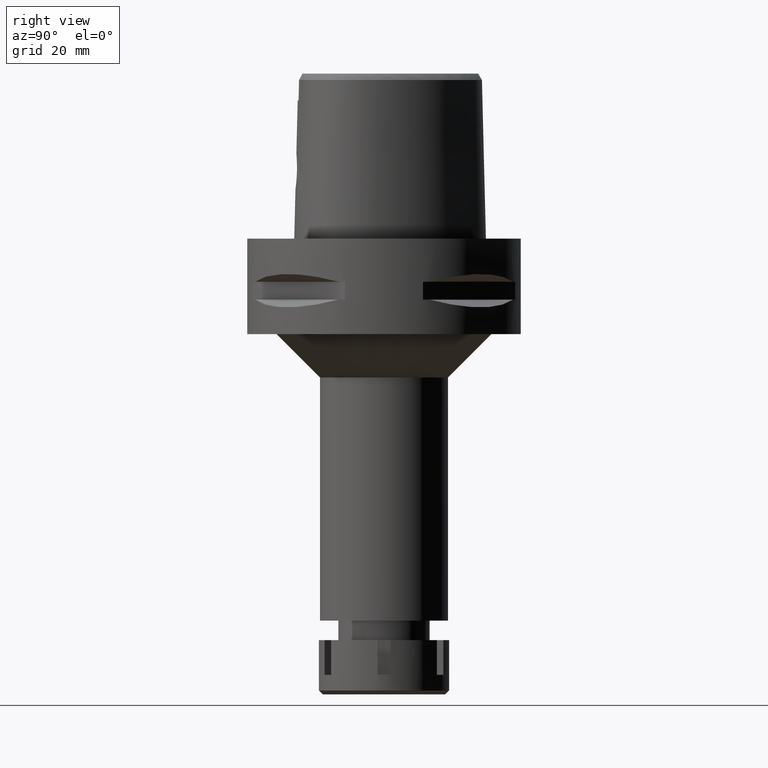
[diagram: clean part render]
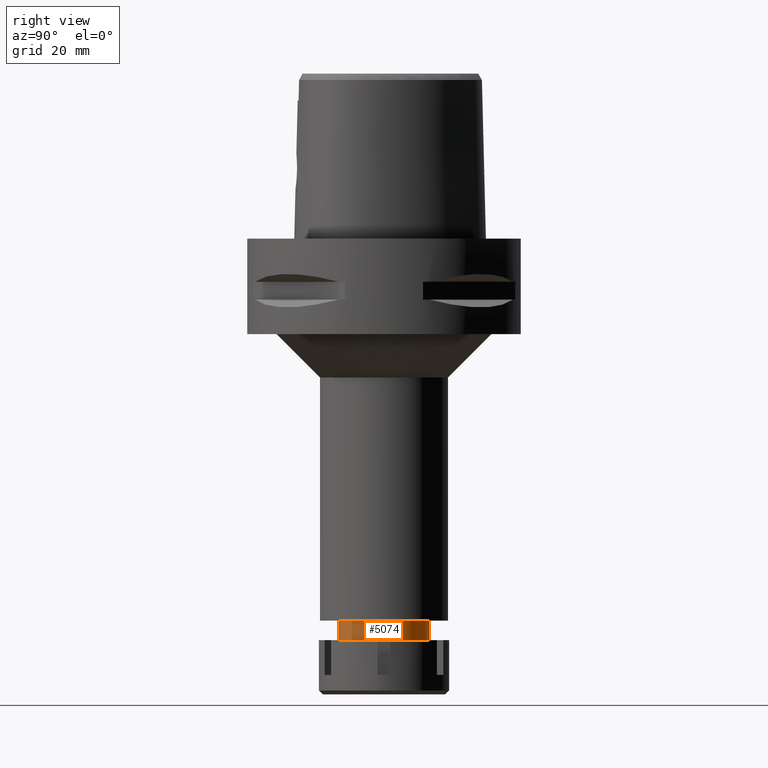
[diagram: same view with one face highlighted and labeled with its STEP entity id]
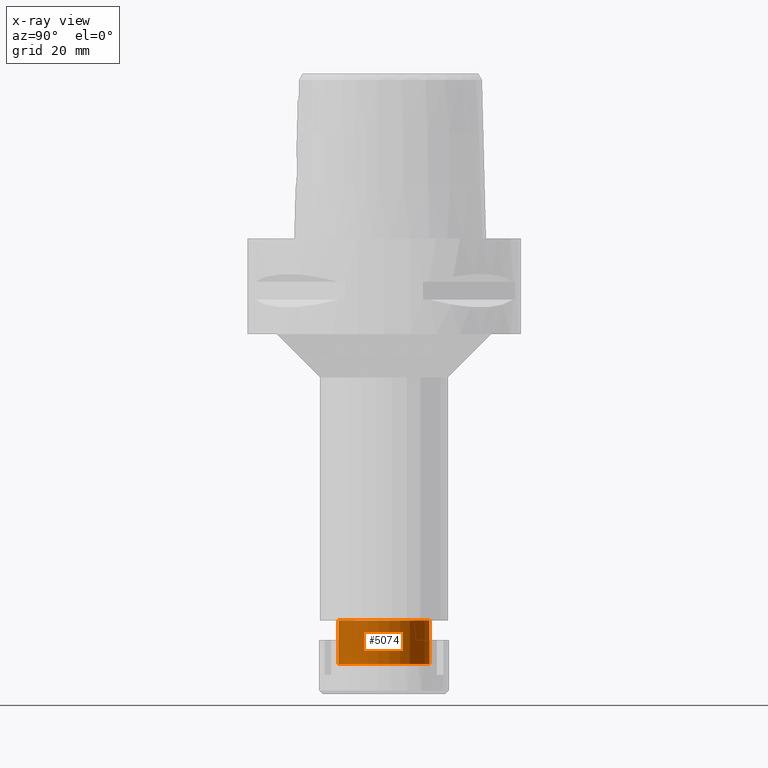
[diagram: x-ray of the same camera — body ghosted, the highlighted face saturated]
A machine part, right view. The second image highlights one B-rep face of the part: STEP entity #5074.
The next image is the same camera in x-ray: the body ghosted, the highlighted face saturated — about 0% of this face is hidden behind the body in this view.
In plain terms, the highlighted cylindrical surface (partial cylindrical patch) has radius 10.5 mm, axis along (0, 0, -1).
Its self-contained STEP definition (entity closure, byte-faithful):
#2 = CARTESIAN_POINT ( 'NONE',  ( 0.0000000000000000000, 10.50000000000000000, -98.00000000000000000 ) ) ;
#96 = EDGE_CURVE ( 'NONE', #3090, #4473, #5526, .T. ) ;
#106 = CARTESIAN_POINT ( 'NONE',  ( 0.0000000000000000000, -10.50000000000000000, -88.00000000000000000 ) ) ;
#171 = DIRECTION ( 'NONE',  ( 0.0000000000000000000, -1.000000000000000000, 0.0000000000000000000 ) ) ;
#389 = DIRECTION ( 'NONE',  ( 0.0000000000000000000, 0.0000000000000000000, -1.000000000000000000 ) ) ;
#812 = CARTESIAN_POINT ( 'NONE',  ( 0.0000000000000000000, 10.50000000000000000, -88.00000000000000000 ) ) ;
#822 = LINE ( 'NONE', #2516, #4542 ) ;
#862 = AXIS2_PLACEMENT_3D ( 'NONE', #4140, #1984, #3311 ) ;
#1141 = ORIENTED_EDGE ( 'NONE', *, *, #3815, .T. ) ;
#1300 = AXIS2_PLACEMENT_3D ( 'NONE', #3404, #2621, #5066 ) ;
#1418 = CARTESIAN_POINT ( 'NONE',  ( 0.0000000000000000000, 1.284654492305999992E-14, -98.00000000000000000 ) ) ;
#1448 = DIRECTION ( 'NONE',  ( 0.0000000000000000000, 0.0000000000000000000, -1.000000000000000000 ) ) ;
#1773 = VECTOR ( 'NONE', #1448, 1000.000000000000000 ) ;
#1984 = DIRECTION ( 'NONE',  ( 0.0000000000000000000, 0.0000000000000000000, -1.000000000000000000 ) ) ;
#2516 = CARTESIAN_POINT ( 'NONE',  ( 0.0000000000000000000, -10.50000000000000000, -88.00000000000000000 ) ) ;
#2621 = DIRECTION ( 'NONE',  ( 0.0000000000000000000, 0.0000000000000000000, -1.000000000000000000 ) ) ;
#2756 = ORIENTED_EDGE ( 'NONE', *, *, #4978, .T. ) ;
#3090 = VERTEX_POINT ( 'NONE', #812 ) ;
#3102 = CARTESIAN_POINT ( 'NONE',  ( 0.0000000000000000000, 10.50000000000000000, -88.00000000000000000 ) ) ;
#3123 = CARTESIAN_POINT ( 'NONE',  ( 0.0000000000000000000, -10.50000000000000000, -98.00000000000000000 ) ) ;
#3287 = CIRCLE ( 'NONE', #862, 10.50000000000000000 ) ;
#3311 = DIRECTION ( 'NONE',  ( 0.0000000000000000000, 1.000000000000000000, 0.0000000000000000000 ) ) ;
#3404 = CARTESIAN_POINT ( 'NONE',  ( 0.0000000000000000000, 1.284654492305999992E-14, 4.899999999999999467 ) ) ;
#3631 = EDGE_LOOP ( 'NONE', ( #1141, #2756, #5388, #4571 ) ) ;
#3646 = AXIS2_PLACEMENT_3D ( 'NONE', #1418, #3973, #171 ) ;
#3815 = EDGE_CURVE ( 'NONE', #3090, #5270, #3287, .T. ) ;
#3882 = CYLINDRICAL_SURFACE ( 'NONE', #1300, 10.50000000000000000 ) ;
#3973 = DIRECTION ( 'NONE',  ( 0.0000000000000000000, 0.0000000000000000000, 1.000000000000000000 ) ) ;
#4140 = CARTESIAN_POINT ( 'NONE',  ( 0.0000000000000000000, 1.284654492305999992E-14, -88.00000000000000000 ) ) ;
#4199 = EDGE_CURVE ( 'NONE', #4513, #4473, #4725, .T. ) ;
#4473 = VERTEX_POINT ( 'NONE', #2 ) ;
#4513 = VERTEX_POINT ( 'NONE', #3123 ) ;
#4542 = VECTOR ( 'NONE', #389, 1000.000000000000000 ) ;
#4571 = ORIENTED_EDGE ( 'NONE', *, *, #96, .F. ) ;
#4725 = CIRCLE ( 'NONE', #3646, 10.50000000000000000 ) ;
#4726 = FACE_OUTER_BOUND ( 'NONE', #3631, .T. ) ;
#4978 = EDGE_CURVE ( 'NONE', #5270, #4513, #822, .T. ) ;
#5066 = DIRECTION ( 'NONE',  ( 0.0000000000000000000, -1.000000000000000000, 0.0000000000000000000 ) ) ;
#5074 = ADVANCED_FACE ( 'NONE', ( #4726 ), #3882, .T. ) ;
#5270 = VERTEX_POINT ( 'NONE', #106 ) ;
#5388 = ORIENTED_EDGE ( 'NONE', *, *, #4199, .T. ) ;
#5526 = LINE ( 'NONE', #3102, #1773 ) ;